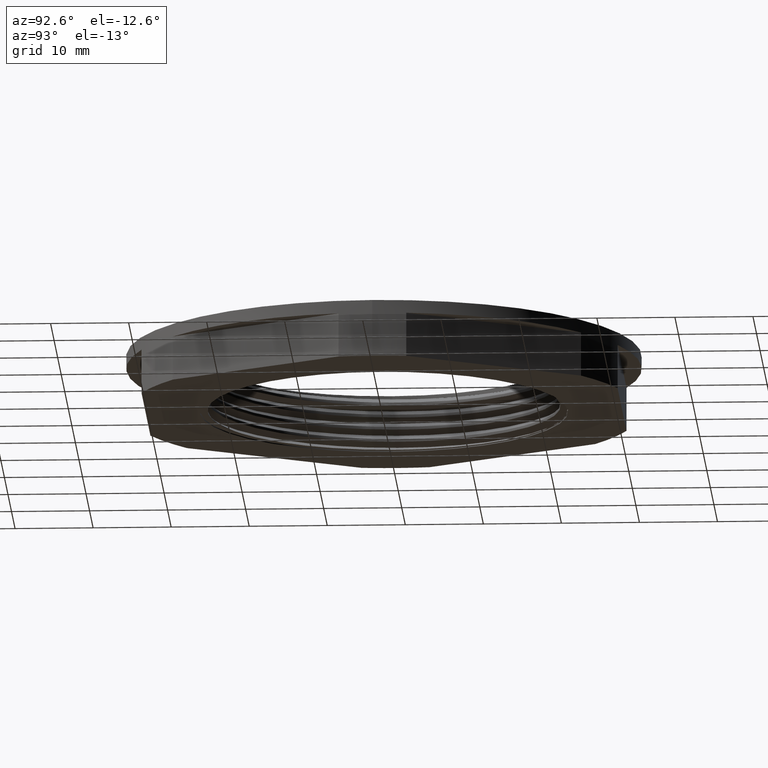
[diagram: clean part render]
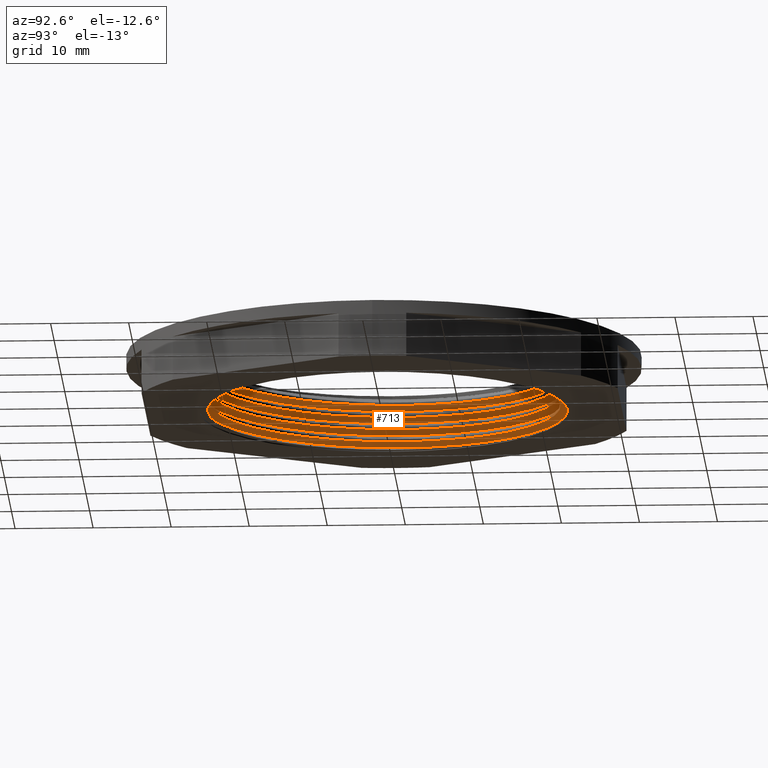
[diagram: same view with one face highlighted and labeled with its STEP entity id]
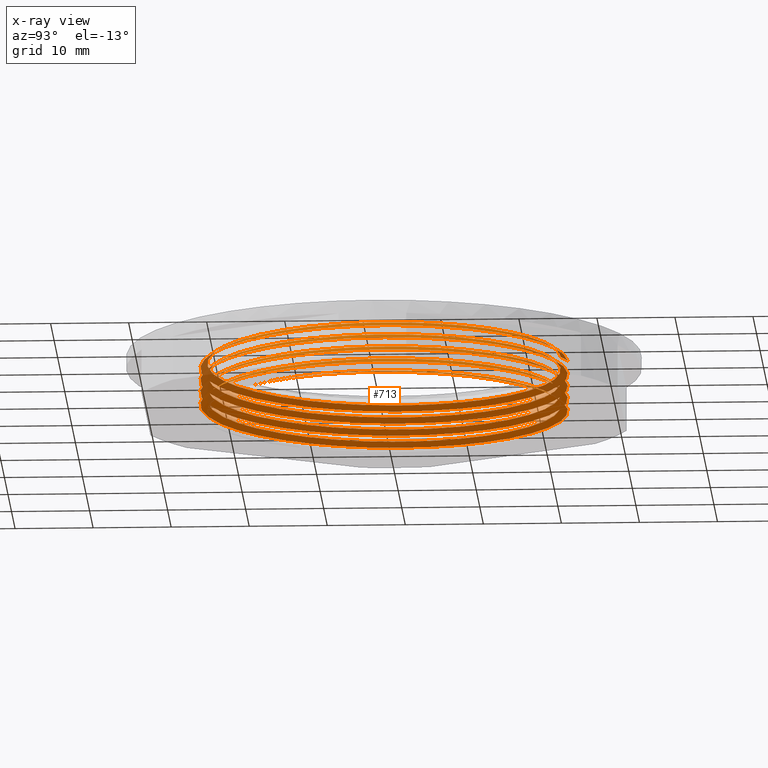
[diagram: x-ray of the same camera — body ghosted, the highlighted face saturated]
A machine part, auxiliary view. The second image highlights one B-rep face of the part: STEP entity #713.
The next image is the same camera in x-ray: the body ghosted, the highlighted face saturated — about 10% of this face is hidden behind the body in this view.
In plain terms, the highlighted face is a freeform B-spline surface patch.
Its self-contained STEP definition (entity closure, byte-faithful):
#32 = EDGE_LOOP ( 'NONE', ( #67, #121, #40, #72, #69, #56, #74, #103, #65, #47, #60, #99, #71 ) ) ;
#40 = ORIENTED_EDGE ( 'NONE', *, *, #597, .T. ) ;
#43 = CARTESIAN_POINT ( 'NONE',  ( 22.61287820974256100, -0.0002837199695431614500, 0.2351515696547017700 ) ) ;
#47 = ORIENTED_EDGE ( 'NONE', *, *, #602, .T. ) ;
#56 = ORIENTED_EDGE ( 'NONE', *, *, #630, .T. ) ;
#60 = ORIENTED_EDGE ( 'NONE', *, *, #647, .T. ) ;
#64 = CARTESIAN_POINT ( 'NONE',  ( -22.61106558176230400, -0.0002837199695431614500, 1.028414727549436900 ) ) ;
#65 = ORIENTED_EDGE ( 'NONE', *, *, #605, .T. ) ;
#67 = ORIENTED_EDGE ( 'NONE', *, *, #676, .T. ) ;
#69 = ORIENTED_EDGE ( 'NONE', *, *, #608, .T. ) ;
#71 = ORIENTED_EDGE ( 'NONE', *, *, #654, .T. ) ;
#72 = ORIENTED_EDGE ( 'NONE', *, *, #669, .T. ) ;
#74 = ORIENTED_EDGE ( 'NONE', *, *, #595, .T. ) ;
#99 = ORIENTED_EDGE ( 'NONE', *, *, #661, .F. ) ;
#103 = ORIENTED_EDGE ( 'NONE', *, *, #696, .T. ) ;
#121 = ORIENTED_EDGE ( 'NONE', *, *, #609, .T. ) ;
#257 = VERTEX_POINT ( 'NONE', #43 ) ;
#258 = VERTEX_POINT ( 'NONE', #64 ) ;
#274 = VERTEX_POINT ( 'NONE', #315 ) ;
#275 = VERTEX_POINT ( 'NONE', #345 ) ;
#279 = VERTEX_POINT ( 'NONE', #320 ) ;
#284 = VERTEX_POINT ( 'NONE', #339 ) ;
#285 = VERTEX_POINT ( 'NONE', #376 ) ;
#291 = VERTEX_POINT ( 'NONE', #366 ) ;
#309 = VERTEX_POINT ( 'NONE', #372 ) ;
#312 = VERTEX_POINT ( 'NONE', #378 ) ;
#313 = VERTEX_POINT ( 'NONE', #391 ) ;
#315 = CARTESIAN_POINT ( 'NONE',  ( -22.61106558176230400, -0.0002837199695431614500, 2.614941043338907100 ) ) ;
#320 = CARTESIAN_POINT ( 'NONE',  ( -22.61106558176230400, -0.0002837199695431614500, 4.201467359128377800 ) ) ;
#328 = VERTEX_POINT ( 'NONE', #385 ) ;
#339 = CARTESIAN_POINT ( 'NONE',  ( 22.61287820974256100, -0.0002837199695623869000, 1.821677885444171300 ) ) ;
#345 = CARTESIAN_POINT ( 'NONE',  ( -22.61106558176230400, -0.0002837199695431614500, 5.787993674917847100 ) ) ;
#349 = VERTEX_POINT ( 'NONE', #394 ) ;
#366 = CARTESIAN_POINT ( 'NONE',  ( -0.5444621070619297700, 22.60511046592371500, 6.983690960531878200 ) ) ;
#372 = CARTESIAN_POINT ( 'NONE',  ( 22.61287820974256100, -0.0002837199695623869000, 4.994730517023112000 ) ) ;
#376 = CARTESIAN_POINT ( 'NONE',  ( 22.61287820974256100, -0.0002837199697939559500, 3.408204201233639100 ) ) ;
#378 = CARTESIAN_POINT ( 'NONE',  ( -0.01848841511524390600, 23.51612362381857600, 0.03024359211078726400 ) ) ;
#385 = CARTESIAN_POINT ( 'NONE',  ( 22.61287820974256100, -0.0002837199695643310400, 6.581256832812581300 ) ) ;
#391 = CARTESIAN_POINT ( 'NONE',  ( -0.01848841511613359300, 23.51612362381872900, 6.376348855268714600 ) ) ;
#394 = CARTESIAN_POINT ( 'NONE',  ( 15.55030069532362400, -16.41727514312782100, 0.03024359211071185300 ) ) ;
#396 = CARTESIAN_POINT ( 'NONE',  ( -22.61106558176227200, -0.2730075975031426300, 4.204382635836314100 ) ) ;
#399 = CARTESIAN_POINT ( 'NONE',  ( -15.59788749747959700, -16.37034494897998000, 4.405585697373879800 ) ) ;
#405 = CARTESIAN_POINT ( 'NONE',  ( -22.60448787190312100, -0.5456521410208169400, 4.207269907900195200 ) ) ;
#407 = CARTESIAN_POINT ( 'NONE',  ( -22.37858887541368700, -9.909112995607717500, 4.306427802637037100 ) ) ;
#409 = CARTESIAN_POINT ( 'NONE',  ( 9.909735589628290600, -22.37977890937337100, 4.703059381584408200 ) ) ;
#410 = CARTESIAN_POINT ( 'NONE',  ( 16.37096754300055700, -15.59907753143927800, 4.802217276321246500 ) ) ;
#414 = CARTESIAN_POINT ( 'NONE',  ( -8.817186119545498400, -22.83157690235223900, 4.504743592110722600 ) ) ;
#415 = CARTESIAN_POINT ( 'NONE',  ( 22.61287820974254400, -9.048541571059665500, 4.898009336615032800 ) ) ;
#416 = CARTESIAN_POINT ( 'NONE',  ( 22.61287820974256100, -0.0002837199695623869000, 4.994730517023112000 ) ) ;
#419 = CARTESIAN_POINT ( 'NONE',  ( 0.5462747350413953400, -22.60567790586280200, 4.603901486847563600 ) ) ;
#421 = CARTESIAN_POINT ( 'NONE',  ( -22.61106558176230400, -0.0002837199695431614500, 4.201467359128377800 ) ) ;
#426 = CARTESIAN_POINT ( 'NONE',  ( 16.37096754300055000, -15.59907753143925600, 1.629164644742318900 ) ) ;
#427 = CARTESIAN_POINT ( 'NONE',  ( -22.61106558176225400, -0.2730075975031432400, 1.031330004257385600 ) ) ;
#429 = CARTESIAN_POINT ( 'NONE',  ( -15.59788749747957600, -16.37034494897997300, 1.232533065794951400 ) ) ;
#430 = CARTESIAN_POINT ( 'NONE',  ( 0.5462747350414053300, -22.60567790586278700, 1.430848855268635100 ) ) ;
#432 = CARTESIAN_POINT ( 'NONE',  ( -8.817186119545482400, -22.83157690235222900, 1.331690960531793300 ) ) ;
#433 = CARTESIAN_POINT ( 'NONE',  ( 9.909735589628295900, -22.37977890937334600, 1.530006750005477300 ) ) ;
#434 = CARTESIAN_POINT ( 'NONE',  ( 22.61287820974256100, -0.0002837199695623869000, 1.821677885444171300 ) ) ;
#435 = CARTESIAN_POINT ( 'NONE',  ( -22.61106558176230400, -0.0002837199695431614500, 1.028414727549436900 ) ) ;
#437 = CARTESIAN_POINT ( 'NONE',  ( -22.60448787190310700, -0.5456521410208270400, 1.034217276321267800 ) ) ;
#439 = CARTESIAN_POINT ( 'NONE',  ( -22.37858887541366200, -9.909112995607721100, 1.133375171058109700 ) ) ;
#443 = CARTESIAN_POINT ( 'NONE',  ( 22.61287820974251200, -9.048541571059670800, 1.724956705036105200 ) ) ;
#452 = CARTESIAN_POINT ( 'NONE',  ( 22.61287820974256100, -0.0002837199695643310400, 6.581256832812581300 ) ) ;
#453 = CARTESIAN_POINT ( 'NONE',  ( 22.61287820974255800, 0.2724401575640206800, 6.584172109520501700 ) ) ;
#455 = CARTESIAN_POINT ( 'NONE',  ( 22.60630049988340700, 0.5450847010816964900, 6.587059381584382800 ) ) ;
#457 = CARTESIAN_POINT ( 'NONE',  ( 22.38040150339398000, 9.908545555668611700, 6.686217276321226400 ) ) ;
#458 = CARTESIAN_POINT ( 'NONE',  ( 15.59970012545988300, 16.36977750904088000, 6.785375171058066500 ) ) ;
#461 = CARTESIAN_POINT ( 'NONE',  ( 8.818998747525801800, 22.83100946241316000, 6.884533065794909300 ) ) ;
#462 = CARTESIAN_POINT ( 'NONE',  ( -22.61106558176230400, -0.0002837199695431614500, 5.787993674917847100 ) ) ;
#465 = CARTESIAN_POINT ( 'NONE',  ( -0.5444621070619297700, 22.60511046592371500, 6.983690960531878200 ) ) ;
#468 = CARTESIAN_POINT ( 'NONE',  ( -8.817186119545505500, -22.83157690235224300, 6.091269907900191100 ) ) ;
#469 = CARTESIAN_POINT ( 'NONE',  ( -22.61106558176227600, -0.2730075975031394100, 5.790908951625782600 ) ) ;
#470 = CARTESIAN_POINT ( 'NONE',  ( -15.59788749747960200, -16.37034494897998000, 5.992112013163346500 ) ) ;
#471 = CARTESIAN_POINT ( 'NONE',  ( 0.5462747350413922300, -22.60567790586280900, 6.190427802637029400 ) ) ;
#472 = CARTESIAN_POINT ( 'NONE',  ( -22.60448787190312800, -0.5456521410208138300, 5.793796223689663600 ) ) ;
#473 = CARTESIAN_POINT ( 'NONE',  ( 16.37096754300055700, -15.59907753143928300, 6.388743592110714100 ) ) ;
#474 = CARTESIAN_POINT ( 'NONE',  ( 9.909735589628288800, -22.37977890937337800, 6.289585697373873100 ) ) ;
#475 = CARTESIAN_POINT ( 'NONE',  ( 22.61287820974254400, -9.048541571059672600, 6.484535652404499500 ) ) ;
#476 = CARTESIAN_POINT ( 'NONE',  ( -22.37858887541369100, -9.909112995607715700, 5.892954118426504600 ) ) ;
#477 = CARTESIAN_POINT ( 'NONE',  ( 22.61287820974256100, -0.0002837199695643310400, 6.581256832812581300 ) ) ;
#479 = CARTESIAN_POINT ( 'NONE',  ( -22.61106558176226100, -0.2730075975031294200, 2.617856320046850500 ) ) ;
#482 = CARTESIAN_POINT ( 'NONE',  ( -15.59788749747958300, -16.37034494897997300, 2.819059381584416700 ) ) ;
#483 = CARTESIAN_POINT ( 'NONE',  ( 15.59970012545986900, 16.36977750904087600, 0.4392699079001956600 ) ) ;
#485 = CARTESIAN_POINT ( 'NONE',  ( 0.5462747350414014500, -22.60567790586279500, 3.017375171058100900 ) ) ;
#486 = CARTESIAN_POINT ( 'NONE',  ( -22.61106558176228600, 9.047974131120565000, 0.9316935471413491100 ) ) ;
#487 = CARTESIAN_POINT ( 'NONE',  ( -0.5444621070611286300, 22.60511046592371500, 0.6375856973738796000 ) ) ;
#489 = CARTESIAN_POINT ( 'NONE',  ( -22.37858887541366900, -9.909112995607719300, 2.719901486847575300 ) ) ;
#490 = CARTESIAN_POINT ( 'NONE',  ( 16.37096754300055000, -15.59907753143926400, 3.215690960531784300 ) ) ;
#492 = CARTESIAN_POINT ( 'NONE',  ( -22.61106558176230400, -0.0002837199695431614500, 2.614941043338907100 ) ) ;
#493 = CARTESIAN_POINT ( 'NONE',  ( 22.61287820974256100, -0.0002837199695431614500, 0.2351515696547017700 ) ) ;
#500 = CARTESIAN_POINT ( 'NONE',  ( -22.60448787190311400, -0.5456521410208230400, 2.620743592110733400 ) ) ;
#501 = CARTESIAN_POINT ( 'NONE',  ( 22.61287820974219200, -9.048541571060010100, 3.311483020825564800 ) ) ;
#502 = CARTESIAN_POINT ( 'NONE',  ( -8.817186119545489500, -22.83157690235223200, 2.918217276321259000 ) ) ;
#504 = CARTESIAN_POINT ( 'NONE',  ( 22.38040150339396200, 9.908545555668615300, 0.3401120131633539300 ) ) ;
#507 = CARTESIAN_POINT ( 'NONE',  ( 22.61287820974254000, 0.2724401575640388900, 0.2380668463626302600 ) ) ;
#508 = CARTESIAN_POINT ( 'NONE',  ( -16.36915491502030300, 15.59851009150018800, 0.8359014868475633800 ) ) ;
#509 = CARTESIAN_POINT ( 'NONE',  ( -22.61106558176230400, -0.0002837199695431614500, 1.028414727549436900 ) ) ;
#512 = CARTESIAN_POINT ( 'NONE',  ( 9.909735589628290600, -22.37977890937335700, 3.116533065794942400 ) ) ;
#514 = CARTESIAN_POINT ( 'NONE',  ( -9.907922961648031500, 22.37921146943428100, 0.7367435921107216000 ) ) ;
#515 = CARTESIAN_POINT ( 'NONE',  ( 22.60630049988339600, 0.5450847010817041500, 0.2409541184265120200 ) ) ;
#516 = CARTESIAN_POINT ( 'NONE',  ( 8.818998747525787600, 22.83100946241315300, 0.5384278026370374900 ) ) ;
#517 = CARTESIAN_POINT ( 'NONE',  ( 22.61287820974256100, -0.0002837199697939559500, 3.408204201233639100 ) ) ;
#566 = CARTESIAN_POINT ( 'NONE',  ( 22.61287820974256100, -0.0002837199697939559500, 3.408204201233639100 ) ) ;
#567 = CARTESIAN_POINT ( 'NONE',  ( 22.38040150339395900, 9.908545555668617100, 3.513164644742297500 ) ) ;
#568 = CARTESIAN_POINT ( 'NONE',  ( -0.5444621070611305200, 22.60511046592371500, 3.810638328952821400 ) ) ;
#570 = CARTESIAN_POINT ( 'NONE',  ( -22.61106558176230400, -0.0002837199695431614500, 4.201467359128377800 ) ) ;
#572 = CARTESIAN_POINT ( 'NONE',  ( 15.59970012545986500, 16.36977750904087300, 3.612322539479138100 ) ) ;
#575 = CARTESIAN_POINT ( 'NONE',  ( 8.818998747525784100, 22.83100946241315300, 3.711480434215980000 ) ) ;
#576 = CARTESIAN_POINT ( 'NONE',  ( -9.907922961648031500, 22.37921146943427800, 3.909796223689663300 ) ) ;
#583 = CARTESIAN_POINT ( 'NONE',  ( 22.60630049988339600, 0.5450847010817059200, 3.414006750005454300 ) ) ;
#588 = CARTESIAN_POINT ( 'NONE',  ( 22.61287820974255400, 0.2724401575636065700, 3.411119477941567400 ) ) ;
#589 = CARTESIAN_POINT ( 'NONE',  ( -22.61106558176228600, 9.047974131120563300, 4.104746178720290600 ) ) ;
#591 = CARTESIAN_POINT ( 'NONE',  ( -16.36915491502030000, 15.59851009150018600, 4.008954118426506100 ) ) ;
#595 = EDGE_CURVE ( 'NONE', #279, #309, #1031, .T. ) ;
#597 = EDGE_CURVE ( 'NONE', #258, #284, #1025, .T. ) ;
#602 = EDGE_CURVE ( 'NONE', #328, #291, #1027, .T. ) ;
#605 = EDGE_CURVE ( 'NONE', #275, #328, #1028, .T. ) ;
#608 = EDGE_CURVE ( 'NONE', #274, #285, #1029, .T. ) ;
#609 = EDGE_CURVE ( 'NONE', #257, #258, #1038, .T. ) ;
#630 = EDGE_CURVE ( 'NONE', #285, #279, #1034, .T. ) ;
#647 = EDGE_CURVE ( 'NONE', #291, #313, #1835, .T. ) ;
#654 = EDGE_CURVE ( 'NONE', #312, #349, #1989, .T. ) ;
#661 = EDGE_CURVE ( 'NONE', #312, #313, #1051, .T. ) ;
#669 = EDGE_CURVE ( 'NONE', #284, #274, #1036, .T. ) ;
#676 = EDGE_CURVE ( 'NONE', #349, #257, #1052, .T. ) ;
#696 = EDGE_CURVE ( 'NONE', #309, #275, #1044, .T. ) ;
#713 = ADVANCED_FACE ( 'NONE', ( #1403 ), #1054, .T. ) ;
#1018 = VECTOR ( 'NONE', #1824, 1000.000000000000100 ) ;
#1025 =( BOUNDED_CURVE ( )  B_SPLINE_CURVE ( 2, ( #435, #427, #437, #439, #429, #432, #430, #433, #426, #443, #434 ),
 .UNSPECIFIED., .F., .T. ) 
 B_SPLINE_CURVE_WITH_KNOTS ( ( 3, 2, 2, 2, 2, 3 ),
 ( -0.5010636989453873800, -0.5005010475036588700, -0.4826059102261615600, -0.4647107729486643100, -0.4468156356711670600, -0.4294831498353983100 ),
 .UNSPECIFIED. ) 
 CURVE ( )  GEOMETRIC_REPRESENTATION_ITEM ( )  RATIONAL_B_SPLINE_CURVE ( ( 0.9953638053244358000, 0.9976066520131460200, 1.000000000000000000, 0.9238795325112867400, 1.000000000000000000, 0.9238795325112867400, 1.000000000000000000, 0.9238795325112867400, 1.000000000000000000, 0.9262728804981407200, 0.9953638053244356900 ) ) 
 REPRESENTATION_ITEM ( '' )  );
#1027 =( BOUNDED_CURVE ( )  B_SPLINE_CURVE ( 2, ( #452, #453, #455, #457, #458, #461, #465 ),
 .UNSPECIFIED., .F., .T. ) 
 B_SPLINE_CURVE_WITH_KNOTS ( ( 3, 2, 2, 3 ),
 ( 0.0000000000000000000, 0.0005619386774586198000, 0.01843440647699862500, 0.03630687427653862800 ),
 .UNSPECIFIED. ) 
 CURVE ( )  GEOMETRIC_REPRESENTATION_ITEM ( )  RATIONAL_B_SPLINE_CURVE ( ( 0.9953638053244360200, 0.9976066520131461300, 1.000000000000000000, 0.9238795325112867400, 1.000000000000000000, 0.9238795325112867400, 1.000000000000000000 ) ) 
 REPRESENTATION_ITEM ( '' )  );
#1028 =( BOUNDED_CURVE ( )  B_SPLINE_CURVE ( 2, ( #462, #469, #472, #476, #470, #468, #471, #474, #473, #475, #477 ),
 .UNSPECIFIED., .F., .F. ) 
 B_SPLINE_CURVE_WITH_KNOTS ( ( 3, 2, 2, 2, 2, 3 ),
 ( -0.07158050773155359700, -0.07101785661507598000, -0.05312272968218756400, -0.03522760274929914000, -0.01733247581641072400, 0.0000000000000000000 ),
 .UNSPECIFIED. ) 
 CURVE ( )  GEOMETRIC_REPRESENTATION_ITEM ( )  RATIONAL_B_SPLINE_CURVE ( ( 0.9953638053244360200, 0.9976066520131461300, 1.000000000000000000, 0.9238795325112867400, 1.000000000000000000, 0.9238795325112867400, 1.000000000000000000, 0.9238795325112867400, 1.000000000000000000, 0.9262728804981406000, 0.9953638053244360200 ) ) 
 REPRESENTATION_ITEM ( '' )  );
#1029 =( BOUNDED_CURVE ( )  B_SPLINE_CURVE ( 2, ( #492, #479, #500, #489, #482, #502, #485, #512, #490, #501, #517 ),
 .UNSPECIFIED., .F., .T. ) 
 B_SPLINE_CURVE_WITH_KNOTS ( ( 3, 2, 2, 2, 2, 3 ),
 ( -0.3579026076218168000, -0.3573399562885052300, -0.3394448224592114800, -0.3215496886299176700, -0.3036545548006238700, -0.2863220723046424600 ),
 .UNSPECIFIED. ) 
 CURVE ( )  GEOMETRIC_REPRESENTATION_ITEM ( )  RATIONAL_B_SPLINE_CURVE ( ( 0.9953638053244356900, 0.9976066520131460200, 1.000000000000000000, 0.9238795325112867400, 1.000000000000000000, 0.9238795325112867400, 1.000000000000000000, 0.9238795325112867400, 1.000000000000000000, 0.9262728804981442700, 0.9953638053244290300 ) ) 
 REPRESENTATION_ITEM ( '' )  );
#1031 =( BOUNDED_CURVE ( )  B_SPLINE_CURVE ( 2, ( #421, #396, #405, #407, #399, #414, #419, #409, #410, #415, #416 ),
 .UNSPECIFIED., .F., .F. ) 
 B_SPLINE_CURVE_WITH_KNOTS ( ( 3, 2, 2, 2, 2, 3 ),
 ( -0.2147415438838738400, -0.2141788926589793000, -0.1962837622778886800, -0.1783886318967981300, -0.1604935015157075200, -0.1431610223595114500 ),
 .UNSPECIFIED. ) 
 CURVE ( )  GEOMETRIC_REPRESENTATION_ITEM ( )  RATIONAL_B_SPLINE_CURVE ( ( 0.9953638053244360200, 0.9976066520131461300, 1.000000000000000000, 0.9238795325112867400, 1.000000000000000000, 0.9238795325112867400, 1.000000000000000000, 0.9238795325112867400, 1.000000000000000000, 0.9262728804981406000, 0.9953638053244360200 ) ) 
 REPRESENTATION_ITEM ( '' )  );
#1034 =( BOUNDED_CURVE ( )  B_SPLINE_CURVE ( 2, ( #566, #588, #583, #567, #572, #575, #568, #576, #591, #589, #570 ),
 .UNSPECIFIED., .F., .T. ) 
 B_SPLINE_CURVE_WITH_KNOTS ( ( 3, 2, 2, 2, 2, 3 ),
 ( -0.2863220723046424600, -0.2857594210255385800, -0.2678642889203466900, -0.2499691568151547200, -0.2320740247099627700, -0.2147415438838738400 ),
 .UNSPECIFIED. ) 
 CURVE ( )  GEOMETRIC_REPRESENTATION_ITEM ( )  RATIONAL_B_SPLINE_CURVE ( ( 0.9953638053244290300, 0.9976066520131424700, 1.000000000000000000, 0.9238795325112867400, 1.000000000000000000, 0.9238795325112867400, 1.000000000000000000, 0.9238795325112867400, 1.000000000000000000, 0.9262728804981406000, 0.9953638053244360200 ) ) 
 REPRESENTATION_ITEM ( '' )  );
#1036 =( BOUNDED_CURVE ( )  B_SPLINE_CURVE ( 2, ( #1109, #1142, #1133, #1131, #1126, #1124, #1130, #1125, #1134, #1129, #1128 ),
 .UNSPECIFIED., .F., .T. ) 
 B_SPLINE_CURVE_WITH_KNOTS ( ( 3, 2, 2, 2, 2, 3 ),
 ( -0.4294831498353983100, -0.4289204984478783300, -0.4110253628944829400, -0.3931302273410875500, -0.3752350917876922100, -0.3579026076218168000 ),
 .UNSPECIFIED. ) 
 CURVE ( )  GEOMETRIC_REPRESENTATION_ITEM ( )  RATIONAL_B_SPLINE_CURVE ( ( 0.9953638053244360200, 0.9976066520131461300, 1.000000000000000000, 0.9238795325112867400, 1.000000000000000000, 0.9238795325112867400, 1.000000000000000000, 0.9238795325112867400, 1.000000000000000000, 0.9262728804981406000, 0.9953638053244360200 ) ) 
 REPRESENTATION_ITEM ( '' )  );
#1038 =( BOUNDED_CURVE ( )  B_SPLINE_CURVE ( 2, ( #493, #507, #515, #504, #483, #516, #487, #514, #508, #486, #509 ),
 .UNSPECIFIED., .F., .T. ) 
 B_SPLINE_CURVE_WITH_KNOTS ( ( 3, 2, 2, 2, 2, 3 ),
 ( -0.5726442549517830600, -0.5720816034558461300, -0.5541864644542471300, -0.5362913254526482400, -0.5183961864510493500, -0.5010636989453873800 ),
 .UNSPECIFIED. ) 
 CURVE ( )  GEOMETRIC_REPRESENTATION_ITEM ( )  RATIONAL_B_SPLINE_CURVE ( ( 0.9953638053244361400, 0.9976066520131462400, 1.000000000000000000, 0.9238795325112867400, 1.000000000000000000, 0.9238795325112867400, 1.000000000000000000, 0.9238795325112867400, 1.000000000000000000, 0.9262728804981406000, 0.9953638053244360200 ) ) 
 REPRESENTATION_ITEM ( '' )  );
#1044 =( BOUNDED_CURVE ( )  B_SPLINE_CURVE ( 2, ( #1313, #1314, #1300, #1316, #1318, #1291, #1292, #1321, #1319, #1296, #1297 ),
 .UNSPECIFIED., .F., .T. ) 
 B_SPLINE_CURVE_WITH_KNOTS ( ( 3, 2, 2, 2, 2, 3 ),
 ( -0.1431610223595114500, -0.1425983711888253700, -0.1247032425318358700, -0.1068081138748464000, -0.08891298521785701000, -0.07158050773155359700 ),
 .UNSPECIFIED. ) 
 CURVE ( )  GEOMETRIC_REPRESENTATION_ITEM ( )  RATIONAL_B_SPLINE_CURVE ( ( 0.9953638053244360200, 0.9976066520131461300, 1.000000000000000000, 0.9238795325112867400, 1.000000000000000000, 0.9238795325112867400, 1.000000000000000000, 0.9238795325112867400, 1.000000000000000000, 0.9262728804981406000, 0.9953638053244360200 ) ) 
 REPRESENTATION_ITEM ( '' )  );
#1051 =( BOUNDED_CURVE ( )  B_SPLINE_CURVE ( 2, ( #1966, #1970, #1949, #1941, #1944, #1976, #1977, #1953, #1942, #1956, #1943, #1981, #1980, #1983, #1982, #1979, #1062, #1068, #1064, #1071, #1059, #1069, #1075, #1063, #1058, #1079, #1060, #1072, #1061, #1065, #1066, #1070, #1067, #1073, #1074, #1076, #1080, #1077, #1078, #1081, #1082, #1056, #1057, #1103, #1083, #1084, #1091, #1085, #1092, #1093, #1094, #1104, #1095, #1106, #1096, #1097, #1086, #1098, #1099, #1100, #1087, #1101, #1102, #1088, #1105 ),
 .UNSPECIFIED., .F., .T. ) 
 B_SPLINE_CURVE_WITH_KNOTS ( ( 3, 2, 2, 2, 2, 2, 2, 2, 2, 2, 2, 2, 2, 2, 2, 2, 2, 2, 2, 2, 2, 2, 2, 2, 2, 2, 2, 2, 2, 2, 2, 2, 3 ),
 ( 0.0000000000000000000, 0.02500000000000001500, 0.05000000000000003100, 0.07500000000000003900, 0.1000000000000000600, 0.1250000000000000600, 0.1500000000000000800, 0.1750000000000000700, 0.2000000000000001200, 0.2250000000000001200, 0.2500000000000001100, 0.2750000000000001300, 0.3000000000000001600, 0.3250000000000001800, 0.3500000000000001400, 0.3750000000000001700, 0.4000000000000002400, 0.4250000000000002100, 0.4500000000000002300, 0.4750000000000002600, 0.5000000000000002200, 0.5250000000000002400, 0.5500000000000002700, 0.5750000000000002900, 0.6000000000000003100, 0.6250000000000003300, 0.6500000000000003600, 0.6750000000000003800, 0.7000000000000002900, 0.7250000000000003100, 0.7500000000000003300, 0.7750000000000004700, 0.8000000000000004900 ),
 .UNSPECIFIED. ) 
 CURVE ( )  GEOMETRIC_REPRESENTATION_ITEM ( )  RATIONAL_B_SPLINE_CURVE ( ( 1.000000000000000000, 0.9238795325112867400, 1.000000000000000000, 0.9238795325112867400, 1.000000000000000000, 0.9238795325112867400, 1.000000000000000000, 0.9238795325112867400, 1.000000000000000000, 0.9238795325112867400, 1.000000000000000000, 0.9238795325112867400, 1.000000000000000000, 0.9238795325112867400, 1.000000000000000000, 0.9238795325112867400, 1.000000000000000000, 0.9238795325112867400, 1.000000000000000000, 0.9238795325112867400, 1.000000000000000000, 0.9238795325112867400, 1.000000000000000000, 0.9238795325112867400, 1.000000000000000000, 0.9238795325112867400, 1.000000000000000000, 0.9238795325112867400, 1.000000000000000000, 0.9238795325112867400, 1.000000000000000000, 0.9238795325112867400, 1.000000000000000000, 0.9238795325112867400, 1.000000000000000000, 0.9238795325112867400, 1.000000000000000000, 0.9238795325112867400, 1.000000000000000000, 0.9238795325112867400, 1.000000000000000000, 0.9238795325112867400, 1.000000000000000000, 0.9238795325112867400, 1.000000000000000000, 0.9238795325112867400, 1.000000000000000000, 0.9238795325112867400, 1.000000000000000000, 0.9238795325112867400, 1.000000000000000000, 0.9238795325112867400, 1.000000000000000000, 0.9238795325112867400, 1.000000000000000000, 0.9238795325112867400, 1.000000000000000000, 0.9238795325112867400, 1.000000000000000000, 0.9238795325112867400, 1.000000000000000000, 0.9238795325112867400, 1.000000000000000000, 0.9238795325112854100, 1.000000000000001300 ) ) 
 REPRESENTATION_ITEM ( '' )  );
#1052 =( BOUNDED_CURVE ( )  B_SPLINE_CURVE ( 2, ( #1157, #1168, #1171, #1158, #1159 ),
 .UNSPECIFIED., .F., .T. ) 
 B_SPLINE_CURVE_WITH_KNOTS ( ( 3, 2, 3 ),
 ( -0.5911537227133331100, -0.5899621421231685500, -0.5726442549517830600 ),
 .UNSPECIFIED. ) 
 CURVE ( )  GEOMETRIC_REPRESENTATION_ITEM ( )  RATIONAL_B_SPLINE_CURVE ( ( 0.9905303575769992500, 0.9949271060783719800, 1.000000000000000000, 0.9262728804981406000, 0.9953638053244360200 ) ) 
 REPRESENTATION_ITEM ( '' )  );
#1054 =( BOUNDED_SURFACE ( )  B_SPLINE_SURFACE ( 1, 2, ( 
 ( #1426, #1446, #1429, #1450, #1423, #1424, #1398, #1413, #1428, #1437, #1400, #1430, #1448, #1404, #1449, #1425, #1439, #1410, #1440, #1427, #1451, #1417, #1406, #1431, #1420, #1396, #1452, #1441, #1399, #1444, #1433, #1443, #1435, #1445, #1411, #1436, #1442, #1453, #1409, #1397, #1407, #1454, #1401, #1415, #1402, #1412, #1506, #1471, #1460, #1485, #1474, #1507, #1475, #1494, #1483, #1498, #1468, #1473, #1512, #1466, #1491, #1495, #1504, #1496, #1505, #1511, #1484, #1479, #1462, #1516, #1476, #1459, #1478, #1467, #1465, #1481, #1492, #1477, #1488, #1463, #1499 ),
 ( #1472, #1493, #1480, #1482, #1508, #1497, #1509, #1514, #1500, #1469, #1513, #1470, #1486, #1487, #1461, #1489, #1464, #1490, #1501, #1510, #1502, #1503, #1515, #1517, #1518, #1455, #1456, #1457, #1458, #1571, #1557, #1521, #1538, #1563, #1553, #1561, #1544, #1565, #1554, #1519, #1552, #1522, #1523, #1540, #1574, #1575, #1555, #1572, #1524, #1549, #1558, #1545, #1537, #1541, #1542, #1528, #1568, #1573, #1539, #1526, #1576, #1525, #1564, #1532, #1527, #1529, #1569, #1543, #1533, #1547, #1546, #1577, #1556, #1551, #1530, #1550, #1531, #1570, #1534, #1548, #1579 ) ),
 .UNSPECIFIED., .F., .F., .F. ) 
 B_SPLINE_SURFACE_WITH_KNOTS ( ( 2, 2 ),
 ( 3, 2, 2, 2, 2, 2, 2, 2, 2, 2, 2, 2, 2, 2, 2, 2, 2, 2, 2, 2, 2, 2, 2, 2, 2, 2, 2, 2, 2, 2, 2, 2, 2, 2, 2, 2, 2, 2, 2, 2, 3 ),
 ( 0.0000000000000000000, 1.000000000000000000 ),
 ( 0.0000000000000000000, 0.02500000000000000100, 0.05000000000000000300, 0.07499999999999999700, 0.1000000000000000100, 0.1250000000000000000, 0.1499999999999999900, 0.1749999999999999900, 0.2000000000000000100, 0.2250000000000000100, 0.2500000000000000000, 0.2750000000000000200, 0.2999999999999999900, 0.3250000000000000100, 0.3499999999999999800, 0.3750000000000000000, 0.4000000000000000200, 0.4249999999999999900, 0.4500000000000000100, 0.4749999999999999800, 0.5000000000000000000, 0.5250000000000000200, 0.5500000000000000400, 0.5749999999999999600, 0.5999999999999999800, 0.6250000000000000000, 0.6500000000000000200, 0.6750000000000000400, 0.6999999999999999600, 0.7249999999999999800, 0.7500000000000000000, 0.7750000000000000200, 0.8000000000000000400, 0.8249999999999999600, 0.8499999999999999800, 0.8750000000000000000, 0.9000000000000000200, 0.9250000000000000400, 0.9499999999999999600, 0.9749999999999999800, 1.000000000000000000 ),
 .UNSPECIFIED. ) 
 GEOMETRIC_REPRESENTATION_ITEM ( )  RATIONAL_B_SPLINE_SURFACE ( (
 ( 1.000000000000000000, 0.9238795325112867400, 1.000000000000000000, 0.9238795325112867400, 1.000000000000000000, 0.9238795325112867400, 1.000000000000000000, 0.9238795325112867400, 1.000000000000000000, 0.9238795325112867400, 1.000000000000000000, 0.9238795325112867400, 1.000000000000000000, 0.9238795325112867400, 1.000000000000000000, 0.9238795325112867400, 1.000000000000000000, 0.9238795325112867400, 1.000000000000000000, 0.9238795325112867400, 1.000000000000000000, 0.9238795325112867400, 1.000000000000000000, 0.9238795325112867400, 1.000000000000000000, 0.9238795325112867400, 1.000000000000000000, 0.9238795325112867400, 1.000000000000000000, 0.9238795325112867400, 1.000000000000000000, 0.9238795325112867400, 1.000000000000000000, 0.9238795325112867400, 1.000000000000000000, 0.9238795325112867400, 1.000000000000000000, 0.9238795325112867400, 1.000000000000000000, 0.9238795325112867400, 1.000000000000000000, 0.9238795325112867400, 1.000000000000000000, 0.9238795325112867400, 1.000000000000000000, 0.9238795325112867400, 1.000000000000000000, 0.9238795325112867400, 1.000000000000000000, 0.9238795325112867400, 1.000000000000000000, 0.9238795325112867400, 1.000000000000000000, 0.9238795325112867400, 1.000000000000000000, 0.9238795325112867400, 1.000000000000000000, 0.9238795325112867400, 1.000000000000000000, 0.9238795325112867400, 1.000000000000000000, 0.9238795325112867400, 1.000000000000000000, 0.9238795325112867400, 1.000000000000000000, 0.9238795325112867400, 1.000000000000000000, 0.9238795325112867400, 1.000000000000000000, 0.9238795325112867400, 1.000000000000000000, 0.9238795325112867400, 1.000000000000000000, 0.9238795325112867400, 1.000000000000000000, 0.9238795325112867400, 1.000000000000000000, 0.9238795325112867400, 1.000000000000000000, 0.9238795325112867400, 1.000000000000000000),
 ( 1.000000000000000000, 0.9238795325112867400, 1.000000000000000000, 0.9238795325112867400, 1.000000000000000000, 0.9238795325112867400, 1.000000000000000000, 0.9238795325112867400, 1.000000000000000000, 0.9238795325112867400, 1.000000000000000000, 0.9238795325112867400, 1.000000000000000000, 0.9238795325112867400, 1.000000000000000000, 0.9238795325112867400, 1.000000000000000000, 0.9238795325112867400, 1.000000000000000000, 0.9238795325112867400, 1.000000000000000000, 0.9238795325112867400, 1.000000000000000000, 0.9238795325112867400, 1.000000000000000000, 0.9238795325112867400, 1.000000000000000000, 0.9238795325112867400, 1.000000000000000000, 0.9238795325112867400, 1.000000000000000000, 0.9238795325112867400, 1.000000000000000000, 0.9238795325112867400, 1.000000000000000000, 0.9238795325112867400, 1.000000000000000000, 0.9238795325112867400, 1.000000000000000000, 0.9238795325112867400, 1.000000000000000000, 0.9238795325112867400, 1.000000000000000000, 0.9238795325112867400, 1.000000000000000000, 0.9238795325112867400, 1.000000000000000000, 0.9238795325112867400, 1.000000000000000000, 0.9238795325112867400, 1.000000000000000000, 0.9238795325112867400, 1.000000000000000000, 0.9238795325112867400, 1.000000000000000000, 0.9238795325112867400, 1.000000000000000000, 0.9238795325112867400, 1.000000000000000000, 0.9238795325112867400, 1.000000000000000000, 0.9238795325112867400, 1.000000000000000000, 0.9238795325112867400, 1.000000000000000000, 0.9238795325112867400, 1.000000000000000000, 0.9238795325112867400, 1.000000000000000000, 0.9238795325112867400, 1.000000000000000000, 0.9238795325112867400, 1.000000000000000000, 0.9238795325112867400, 1.000000000000000000, 0.9238795325112867400, 1.000000000000000000, 0.9238795325112867400, 1.000000000000000000, 0.9238795325112867400, 1.000000000000000000) ) ) 
 REPRESENTATION_ITEM ( '' )  SURFACE ( )  );
#1056 = CARTESIAN_POINT ( 'NONE',  ( 9.761115903182778600, -23.50865750392381400, 4.095717276321378700 ) ) ;
#1057 = CARTESIAN_POINT ( 'NONE',  ( 16.64323156039755600, -16.61518067743769600, 4.194875171058220600 ) ) ;
#1058 = CARTESIAN_POINT ( 'NONE',  ( 0.02030104309544282500, -23.51669106375778300, 2.410033065795066600 ) ) ;
#1059 = CARTESIAN_POINT ( 'NONE',  ( -23.51550102979810200, -0.01967844907486464300, 2.013401486847699500 ) ) ;
#1060 = CARTESIAN_POINT ( 'NONE',  ( 16.64323156039755600, -16.61518067743769600, 2.608348855268750400 ) ) ;
#1061 = CARTESIAN_POINT ( 'NONE',  ( 23.51731365777835900, 0.01911100913575945700, 2.806664644742434200 ) ) ;
#1062 = CARTESIAN_POINT ( 'NONE',  ( -0.01848841511518415200, 23.51612362381868200, 1.616769907900331500 ) ) ;
#1063 = CARTESIAN_POINT ( 'NONE',  ( -9.720513816991896800, -23.52472462359176200, 2.310875171058225200 ) ) ;
#1064 = CARTESIAN_POINT ( 'NONE',  ( -16.64141893241729900, 16.61461323749859200, 1.815085697374015500 ) ) ;
#1065 = CARTESIAN_POINT ( 'NONE',  ( 23.50928009794438400, 9.759925869223105000, 2.905822539479276000 ) ) ;
#1066 = CARTESIAN_POINT ( 'NONE',  ( 16.61580327145827600, 16.64204152643787200, 3.004980434216117900 ) ) ;
#1067 = CARTESIAN_POINT ( 'NONE',  ( -0.01848841511518415200, 23.51612362381868200, 3.203296223689801700 ) ) ;
#1068 = CARTESIAN_POINT ( 'NONE',  ( -9.759303275202519500, 23.50809006398471000, 1.715927802637173600 ) ) ;
#1069 = CARTESIAN_POINT ( 'NONE',  ( -23.50746746996412600, -9.760493309162200100, 2.112559381584540000 ) ) ;
#1070 = CARTESIAN_POINT ( 'NONE',  ( 9.722326444972168200, 23.52415718365264800, 3.104138328952960300 ) ) ;
#1071 = CARTESIAN_POINT ( 'NONE',  ( -23.52353458963208200, 9.721136411012473400, 1.914243592110857200 ) ) ;
#1072 = CARTESIAN_POINT ( 'NONE',  ( 23.52534721761232800, -9.721703850951584500, 2.707506750005593200 ) ) ;
#1073 = CARTESIAN_POINT ( 'NONE',  ( -9.759303275202519500, 23.50809006398471000, 3.302454118426643200 ) ) ;
#1074 = CARTESIAN_POINT ( 'NONE',  ( -16.64141893241729900, 16.61461323749859200, 3.401612013163485500 ) ) ;
#1075 = CARTESIAN_POINT ( 'NONE',  ( -16.61399064347801200, -16.64260896637697900, 2.211717276321382800 ) ) ;
#1076 = CARTESIAN_POINT ( 'NONE',  ( -23.52353458963208200, 9.721136411012473400, 3.500769907900328300 ) ) ;
#1077 = CARTESIAN_POINT ( 'NONE',  ( -23.50746746996412600, -9.760493309162200100, 3.699085697374010300 ) ) ;
#1078 = CARTESIAN_POINT ( 'NONE',  ( -16.61399064347801200, -16.64260896637697900, 3.798243592110852600 ) ) ;
#1079 = CARTESIAN_POINT ( 'NONE',  ( 9.761115903182778600, -23.50865750392381400, 2.509190960531908500 ) ) ;
#1080 = CARTESIAN_POINT ( 'NONE',  ( -23.51550102979810200, -0.01967844907486464300, 3.599927802637169300 ) ) ;
#1081 = CARTESIAN_POINT ( 'NONE',  ( -9.720513816991896800, -23.52472462359176200, 3.897401486847694500 ) ) ;
#1082 = CARTESIAN_POINT ( 'NONE',  ( 0.02030104309544282500, -23.51669106375778300, 3.996559381584536800 ) ) ;
#1083 = CARTESIAN_POINT ( 'NONE',  ( 23.51731365777835900, 0.01911100913575945700, 4.393190960531904400 ) ) ;
#1084 = CARTESIAN_POINT ( 'NONE',  ( 23.50928009794438400, 9.759925869223105000, 4.492348855268745400 ) ) ;
#1085 = CARTESIAN_POINT ( 'NONE',  ( 9.722326444972168200, 23.52415718365264800, 4.690664644742430100 ) ) ;
#1086 = CARTESIAN_POINT ( 'NONE',  ( 0.02030104309544282500, -23.51669106375778300, 5.583085697374007100 ) ) ;
#1087 = CARTESIAN_POINT ( 'NONE',  ( 23.51731365777835900, 0.01911100913575945700, 5.979717276321373700 ) ) ;
#1088 = CARTESIAN_POINT ( 'NONE',  ( 9.722326444972036800, 23.52415718365278300, 6.277190960531902100 ) ) ;
#1091 = CARTESIAN_POINT ( 'NONE',  ( 16.61580327145827600, 16.64204152643787200, 4.591506750005588200 ) ) ;
#1092 = CARTESIAN_POINT ( 'NONE',  ( -0.01848841511518415200, 23.51612362381868200, 4.789822539479271900 ) ) ;
#1093 = CARTESIAN_POINT ( 'NONE',  ( -9.759303275202519500, 23.50809006398471000, 4.888980434216114700 ) ) ;
#1094 = CARTESIAN_POINT ( 'NONE',  ( -16.64141893241729900, 16.61461323749859200, 4.988138328952955700 ) ) ;
#1095 = CARTESIAN_POINT ( 'NONE',  ( -23.51550102979810200, -0.01967844907486464300, 5.186454118426639500 ) ) ;
#1096 = CARTESIAN_POINT ( 'NONE',  ( -16.61399064347801200, -16.64260896637697900, 5.384769907900322400 ) ) ;
#1097 = CARTESIAN_POINT ( 'NONE',  ( -9.720513816991896800, -23.52472462359176200, 5.483927802637166100 ) ) ;
#1098 = CARTESIAN_POINT ( 'NONE',  ( 9.761115903182778600, -23.50865750392381400, 5.682243592110849000 ) ) ;
#1099 = CARTESIAN_POINT ( 'NONE',  ( 16.64323156039755600, -16.61518067743769600, 5.781401486847690000 ) ) ;
#1100 = CARTESIAN_POINT ( 'NONE',  ( 23.52534721761232800, -9.721703850951584500, 5.880559381584531800 ) ) ;
#1101 = CARTESIAN_POINT ( 'NONE',  ( 23.50928009794438400, 9.759925869223105000, 6.078875171058218300 ) ) ;
#1102 = CARTESIAN_POINT ( 'NONE',  ( 16.61580327145827600, 16.64204152643787200, 6.178033065795058400 ) ) ;
#1103 = CARTESIAN_POINT ( 'NONE',  ( 23.52534721761232800, -9.721703850951584500, 4.294033065795062500 ) ) ;
#1104 = CARTESIAN_POINT ( 'NONE',  ( -23.52353458963208200, 9.721136411012473400, 5.087296223689797600 ) ) ;
#1105 = CARTESIAN_POINT ( 'NONE',  ( -0.01848841511613359300, 23.51612362381872900, 6.376348855268714600 ) ) ;
#1106 = CARTESIAN_POINT ( 'NONE',  ( -23.50746746996412600, -9.760493309162200100, 5.285612013163481400 ) ) ;
#1109 = CARTESIAN_POINT ( 'NONE',  ( 22.61287820974256100, -0.0002837199695623869000, 1.821677885444171300 ) ) ;
#1124 = CARTESIAN_POINT ( 'NONE',  ( 8.818998747525798300, 22.83100946241315700, 2.124954118426500800 ) ) ;
#1125 = CARTESIAN_POINT ( 'NONE',  ( -9.907922961648029800, 22.37921146943429200, 2.323269907900185100 ) ) ;
#1126 = CARTESIAN_POINT ( 'NONE',  ( 15.59970012545987900, 16.36977750904087600, 2.025796223689658900 ) ) ;
#1128 = CARTESIAN_POINT ( 'NONE',  ( -22.61106558176230400, -0.0002837199695431614500, 2.614941043338907100 ) ) ;
#1129 = CARTESIAN_POINT ( 'NONE',  ( -22.61106558176229000, 9.047974131120575700, 2.518219862930813200 ) ) ;
#1130 = CARTESIAN_POINT ( 'NONE',  ( -0.5444621070611230800, 22.60511046592372600, 2.224112013163343600 ) ) ;
#1131 = CARTESIAN_POINT ( 'NONE',  ( 22.38040150339397300, 9.908545555668611700, 1.926638328952817900 ) ) ;
#1133 = CARTESIAN_POINT ( 'NONE',  ( 22.60630049988340300, 0.5450847010816986000, 1.827480434215975400 ) ) ;
#1134 = CARTESIAN_POINT ( 'NONE',  ( -16.36915491502030300, 15.59851009150019900, 2.422427802637026500 ) ) ;
#1142 = CARTESIAN_POINT ( 'NONE',  ( 22.61287820974255800, 0.2724401575640237300, 1.824593162152093700 ) ) ;
#1157 = CARTESIAN_POINT ( 'NONE',  ( 15.55030069532362400, -16.41727514312782100, 0.03024359211071185300 ) ) ;
#1158 = CARTESIAN_POINT ( 'NONE',  ( 22.61287820974254700, -9.048541571059676200, 0.1384303892466175700 ) ) ;
#1159 = CARTESIAN_POINT ( 'NONE',  ( 22.61287820974256100, -0.0002837199695431614500, 0.2351515696547017700 ) ) ;
#1168 = CARTESIAN_POINT ( 'NONE',  ( 15.97112062839245500, -16.01869449371701000, 0.03650204123623504400 ) ) ;
#1171 = CARTESIAN_POINT ( 'NONE',  ( 16.37096754300055700, -15.59907753143928700, 0.04263832895283184400 ) ) ;
#1291 = CARTESIAN_POINT ( 'NONE',  ( 8.818998747525800000, 22.83100946241316000, 5.298006750005442600 ) ) ;
#1292 = CARTESIAN_POINT ( 'NONE',  ( -0.5444621070611217500, 22.60511046592373000, 5.397164644742281900 ) ) ;
#1296 = CARTESIAN_POINT ( 'NONE',  ( -22.61106558176230100, 9.047974131120575700, 5.691272494509750100 ) ) ;
#1297 = CARTESIAN_POINT ( 'NONE',  ( -22.61106558176230400, -0.0002837199695431614500, 5.787993674917847100 ) ) ;
#1300 = CARTESIAN_POINT ( 'NONE',  ( 22.60630049988340700, 0.5450847010816971500, 5.000533065794915200 ) ) ;
#1313 = CARTESIAN_POINT ( 'NONE',  ( 22.61287820974256100, -0.0002837199695623869000, 4.994730517023112000 ) ) ;
#1314 = CARTESIAN_POINT ( 'NONE',  ( 22.61287820974256100, 0.2724401575640222300, 4.997645793731033200 ) ) ;
#1316 = CARTESIAN_POINT ( 'NONE',  ( 22.38040150339398000, 9.908545555668611700, 5.099690960531757100 ) ) ;
#1318 = CARTESIAN_POINT ( 'NONE',  ( 15.59970012545988300, 16.36977750904088000, 5.198848855268598100 ) ) ;
#1319 = CARTESIAN_POINT ( 'NONE',  ( -16.36915491502030700, 15.59851009150020200, 5.595480434215965600 ) ) ;
#1321 = CARTESIAN_POINT ( 'NONE',  ( -9.907922961648029800, 22.37921146943429900, 5.496322539479122900 ) ) ;
#1396 = CARTESIAN_POINT ( 'NONE',  ( 9.761115903182778600, -23.50865750392379300, 0.9226646447421594800 ) ) ;
#1397 = CARTESIAN_POINT ( 'NONE',  ( -9.720513816991882500, -23.52472462359175200, 2.310875171057945800 ) ) ;
#1398 = CARTESIAN_POINT ( 'NONE',  ( -16.61399064347799700, -16.64260896637697200, -0.9613353552578364200 ) ) ;
#1399 = CARTESIAN_POINT ( 'NONE',  ( 23.51731365777834900, 0.01911100913576542500, 1.220138328952684400 ) ) ;
#1400 = CARTESIAN_POINT ( 'NONE',  ( 16.64323156039754900, -16.61518067743768200, -0.5647037763104688600 ) ) ;
#1401 = CARTESIAN_POINT ( 'NONE',  ( 16.64323156039754900, -16.61518067743768200, 2.608348855268470600 ) ) ;
#1402 = CARTESIAN_POINT ( 'NONE',  ( 23.51731365777834900, 0.01911100913576542500, 2.806664644742154400 ) ) ;
#1403 = FACE_OUTER_BOUND ( 'NONE', #32, .T. ) ;
#1404 = CARTESIAN_POINT ( 'NONE',  ( 23.50928009794436200, 9.759925869223108600, -0.2672300920999436900 ) ) ;
#1406 = CARTESIAN_POINT ( 'NONE',  ( -16.61399064347799700, -16.64260896637697200, 0.6251909605316333700 ) ) ;
#1407 = CARTESIAN_POINT ( 'NONE',  ( 0.02030104309544879200, -23.51669106375776900, 2.410033065794787700 ) ) ;
#1409 = CARTESIAN_POINT ( 'NONE',  ( -16.61399064347799700, -16.64260896637697200, 2.211717276321103900 ) ) ;
#1410 = CARTESIAN_POINT ( 'NONE',  ( -9.759303275202519500, 23.50809006398468900, 0.1294014868474235600 ) ) ;
#1411 = CARTESIAN_POINT ( 'NONE',  ( -16.64141893241729200, 16.61461323749857800, 1.815085697373735700 ) ) ;
#1412 = CARTESIAN_POINT ( 'NONE',  ( 23.50928009794436200, 9.759925869223108600, 2.905822539478997200 ) ) ;
#1413 = CARTESIAN_POINT ( 'NONE',  ( -9.720513816991882500, -23.52472462359175200, -0.8621774605209944200 ) ) ;
#1415 = CARTESIAN_POINT ( 'NONE',  ( 23.52534721761232100, -9.721703850951575600, 2.707506750005312900 ) ) ;
#1417 = CARTESIAN_POINT ( 'NONE',  ( -23.50746746996411200, -9.760493309162200100, 0.5260330657947914800 ) ) ;
#1420 = CARTESIAN_POINT ( 'NONE',  ( 0.02030104309544879200, -23.51669106375776900, 0.8235067500053175900 ) ) ;
#1423 = CARTESIAN_POINT ( 'NONE',  ( -23.51550102979808800, -0.01967844907487061400, -1.159651144731520500 ) ) ;
#1424 = CARTESIAN_POINT ( 'NONE',  ( -23.50746746996411200, -9.760493309162200100, -1.060493249994678200 ) ) ;
#1425 = CARTESIAN_POINT ( 'NONE',  ( 9.722326444972159400, 23.52415718365263700, -0.06891430262626033200 ) ) ;
#1426 = CARTESIAN_POINT ( 'NONE',  ( -0.01848841511519012200, 23.51612362381866800, -1.556282723678888500 ) ) ;
#1427 = CARTESIAN_POINT ( 'NONE',  ( -23.52353458963206700, 9.721136411012462700, 0.3277172763211075300 ) ) ;
#1428 = CARTESIAN_POINT ( 'NONE',  ( 0.02030104309544879200, -23.51669106375776900, -0.7630195657841525300 ) ) ;
#1429 = CARTESIAN_POINT ( 'NONE',  ( -16.64141893241729200, 16.61461323749857800, -1.357966934205204500 ) ) ;
#1430 = CARTESIAN_POINT ( 'NONE',  ( 23.52534721761232100, -9.721703850951575600, -0.4655458815736272500 ) ) ;
#1431 = CARTESIAN_POINT ( 'NONE',  ( -9.720513816991882500, -23.52472462359175200, 0.7243488552684757000 ) ) ;
#1433 = CARTESIAN_POINT ( 'NONE',  ( 16.61580327145826200, 16.64204152643786800, 1.418454118426368100 ) ) ;
#1435 = CARTESIAN_POINT ( 'NONE',  ( -0.01848841511519012200, 23.51612362381866800, 1.616769907900051900 ) ) ;
#1436 = CARTESIAN_POINT ( 'NONE',  ( -23.52353458963206700, 9.721136411012462700, 1.914243592110577600 ) ) ;
#1437 = CARTESIAN_POINT ( 'NONE',  ( 9.761115903182778600, -23.50865750392379300, -0.6638616710473105300 ) ) ;
#1439 = CARTESIAN_POINT ( 'NONE',  ( -0.01848841511519012200, 23.51612362381866800, 0.03024359211058161000 ) ) ;
#1440 = CARTESIAN_POINT ( 'NONE',  ( -16.64141893241729200, 16.61461323749857800, 0.2285593815842656700 ) ) ;
#1441 = CARTESIAN_POINT ( 'NONE',  ( 23.52534721761232100, -9.721703850951575600, 1.120980434215843400 ) ) ;
#1442 = CARTESIAN_POINT ( 'NONE',  ( -23.51550102979808800, -0.01967844907487061400, 2.013401486847419700 ) ) ;
#1443 = CARTESIAN_POINT ( 'NONE',  ( 9.722326444972159400, 23.52415718365263700, 1.517612013163209800 ) ) ;
#1444 = CARTESIAN_POINT ( 'NONE',  ( 23.50928009794436200, 9.759925869223108600, 1.319296223689526300 ) ) ;
#1445 = CARTESIAN_POINT ( 'NONE',  ( -9.759303275202519500, 23.50809006398468900, 1.715927802636893400 ) ) ;
#1446 = CARTESIAN_POINT ( 'NONE',  ( -9.759303275202519500, 23.50809006398468900, -1.457124828942046600 ) ) ;
#1448 = CARTESIAN_POINT ( 'NONE',  ( 23.51731365777834900, 0.01911100913576542500, -0.3663879868367854700 ) ) ;
#1449 = CARTESIAN_POINT ( 'NONE',  ( 16.61580327145826200, 16.64204152643786800, -0.1680721973631020300 ) ) ;
#1450 = CARTESIAN_POINT ( 'NONE',  ( -23.52353458963206700, 9.721136411012462700, -1.258809039468362600 ) ) ;
#1451 = CARTESIAN_POINT ( 'NONE',  ( -23.51550102979808800, -0.01967844907487061400, 0.4268751710579497500 ) ) ;
#1452 = CARTESIAN_POINT ( 'NONE',  ( 16.64323156039754900, -16.61518067743768200, 1.021822539479001000 ) ) ;
#1453 = CARTESIAN_POINT ( 'NONE',  ( -23.50746746996411200, -9.760493309162200100, 2.112559381584261200 ) ) ;
#1454 = CARTESIAN_POINT ( 'NONE',  ( 9.761115903182778600, -23.50865750392379300, 2.509190960531629600 ) ) ;
#1455 = CARTESIAN_POINT ( 'NONE',  ( 9.909735589628285300, -22.37977890937340700, 1.530006750005446600 ) ) ;
#1456 = CARTESIAN_POINT ( 'NONE',  ( 16.37096754300056400, -15.59907753143930800, 1.629164644742288100 ) ) ;
#1457 = CARTESIAN_POINT ( 'NONE',  ( 22.83219949637284100, -8.818376153505221600, 1.728322539479130200 ) ) ;
#1458 = CARTESIAN_POINT ( 'NONE',  ( 22.60630049988341000, 0.5450847010816951600, 1.827480434215971400 ) ) ;
#1459 = CARTESIAN_POINT ( 'NONE',  ( -9.720513816991882500, -23.52472462359175200, 5.483927802636888100 ) ) ;
#1460 = CARTESIAN_POINT ( 'NONE',  ( -0.01848841511519012200, 23.51612362381866800, 3.203296223689521900 ) ) ;
#1461 = CARTESIAN_POINT ( 'NONE',  ( 15.59970012545988600, 16.36977750904088000, 0.4392699079001852700 ) ) ;
#1462 = CARTESIAN_POINT ( 'NONE',  ( -23.51550102979808800, -0.01967844907487061400, 5.186454118426359700 ) ) ;
#1463 = CARTESIAN_POINT ( 'NONE',  ( 9.722326444972159400, 23.52415718365263700, 6.277190960531618700 ) ) ;
#1464 = CARTESIAN_POINT ( 'NONE',  ( -0.5444621070611196400, 22.60511046592373000, 0.6375856973738692800 ) ) ;
#1465 = CARTESIAN_POINT ( 'NONE',  ( 16.64323156039754900, -16.61518067743768200, 5.781401486847412000 ) ) ;
#1466 = CARTESIAN_POINT ( 'NONE',  ( 23.52534721761232100, -9.721703850951575600, 4.294033065794784500 ) ) ;
#1467 = CARTESIAN_POINT ( 'NONE',  ( 9.761115903182778600, -23.50865750392379300, 5.682243592110569200 ) ) ;
#1468 = CARTESIAN_POINT ( 'NONE',  ( 0.02030104309544879200, -23.51669106375776900, 3.996559381584256600 ) ) ;
#1469 = CARTESIAN_POINT ( 'NONE',  ( 9.909735589628285300, -22.37977890937340700, -0.05651956578402399900 ) ) ;
#1470 = CARTESIAN_POINT ( 'NONE',  ( 22.83219949637284100, -8.818376153505221600, 0.1417962236896596600 ) ) ;
#1471 = CARTESIAN_POINT ( 'NONE',  ( 9.722326444972159400, 23.52415718365263700, 3.104138328952679600 ) ) ;
#1472 = CARTESIAN_POINT ( 'NONE',  ( -0.5444621070611196400, 22.60511046592373000, -0.9489406184156009600 ) ) ;
#1473 = CARTESIAN_POINT ( 'NONE',  ( 9.761115903182778600, -23.50865750392379300, 4.095717276321099800 ) ) ;
#1474 = CARTESIAN_POINT ( 'NONE',  ( -16.64141893241729200, 16.61461323749857800, 3.401612013163205700 ) ) ;
#1475 = CARTESIAN_POINT ( 'NONE',  ( -23.51550102979808800, -0.01967844907487061400, 3.599927802636889900 ) ) ;
#1476 = CARTESIAN_POINT ( 'NONE',  ( -16.61399064347799700, -16.64260896637697200, 5.384769907900043500 ) ) ;
#1477 = CARTESIAN_POINT ( 'NONE',  ( 23.50928009794436200, 9.759925869223108600, 6.078875171057936700 ) ) ;
#1478 = CARTESIAN_POINT ( 'NONE',  ( 0.02030104309544879200, -23.51669106375776900, 5.583085697373728200 ) ) ;
#1479 = CARTESIAN_POINT ( 'NONE',  ( -23.52353458963206700, 9.721136411012462700, 5.087296223689517800 ) ) ;
#1480 = CARTESIAN_POINT ( 'NONE',  ( -16.36915491502030700, 15.59851009150020600, -0.7506248289419171800 ) ) ;
#1481 = CARTESIAN_POINT ( 'NONE',  ( 23.52534721761232100, -9.721703850951575600, 5.880559381584253800 ) ) ;
#1482 = CARTESIAN_POINT ( 'NONE',  ( -22.83038686839258300, 8.817808713566108700, -0.6514669342050754000 ) ) ;
#1483 = CARTESIAN_POINT ( 'NONE',  ( -16.61399064347799700, -16.64260896637697200, 3.798243592110573700 ) ) ;
#1484 = CARTESIAN_POINT ( 'NONE',  ( -16.64141893241729200, 16.61461323749857800, 4.988138328952675900 ) ) ;
#1485 = CARTESIAN_POINT ( 'NONE',  ( -9.759303275202519500, 23.50809006398468900, 3.302454118426363400 ) ) ;
#1486 = CARTESIAN_POINT ( 'NONE',  ( 22.60630049988341000, 0.5450847010816951600, 0.2409541184265016300 ) ) ;
#1487 = CARTESIAN_POINT ( 'NONE',  ( 22.38040150339398300, 9.908545555668611700, 0.3401120131633435500 ) ) ;
#1488 = CARTESIAN_POINT ( 'NONE',  ( 16.61580327145826200, 16.64204152643786800, 6.178033065794777700 ) ) ;
#1489 = CARTESIAN_POINT ( 'NONE',  ( 8.818998747525803600, 22.83100946241316400, 0.5384278026370272800 ) ) ;
#1490 = CARTESIAN_POINT ( 'NONE',  ( -9.907922961648029800, 22.37921146943430600, 0.7367435921107111700 ) ) ;
#1491 = CARTESIAN_POINT ( 'NONE',  ( 23.51731365777834900, 0.01911100913576542500, 4.393190960531624600 ) ) ;
#1492 = CARTESIAN_POINT ( 'NONE',  ( 23.51731365777834900, 0.01911100913576542500, 5.979717276321094000 ) ) ;
#1493 = CARTESIAN_POINT ( 'NONE',  ( -9.907922961648029800, 22.37921146943430600, -0.8497827236787589600 ) ) ;
#1494 = CARTESIAN_POINT ( 'NONE',  ( -23.50746746996411200, -9.760493309162200100, 3.699085697373730900 ) ) ;
#1495 = CARTESIAN_POINT ( 'NONE',  ( 23.50928009794436200, 9.759925869223108600, 4.492348855268466500 ) ) ;
#1496 = CARTESIAN_POINT ( 'NONE',  ( 9.722326444972159400, 23.52415718365263700, 4.690664644742151200 ) ) ;
#1497 = CARTESIAN_POINT ( 'NONE',  ( -22.37858887541372300, -9.909112995607712200, -0.4531511447313915600 ) ) ;
#1498 = CARTESIAN_POINT ( 'NONE',  ( -9.720513816991882500, -23.52472462359175200, 3.897401486847415200 ) ) ;
#1499 = CARTESIAN_POINT ( 'NONE',  ( -0.01848841511519012200, 23.51612362381866800, 6.376348855268463300 ) ) ;
#1500 = CARTESIAN_POINT ( 'NONE',  ( 0.5462747350413785800, -22.60567790586283400, -0.1556774605208659200 ) ) ;
#1501 = CARTESIAN_POINT ( 'NONE',  ( -16.36915491502030700, 15.59851009150020600, 0.8359014868475529400 ) ) ;
#1502 = CARTESIAN_POINT ( 'NONE',  ( -22.60448787190315300, -0.5456521410208001700, 1.034217276321236700 ) ) ;
#1503 = CARTESIAN_POINT ( 'NONE',  ( -22.37858887541372300, -9.909112995607712200, 1.133375171058078600 ) ) ;
#1504 = CARTESIAN_POINT ( 'NONE',  ( 16.61580327145826200, 16.64204152643786800, 4.591506750005308400 ) ) ;
#1505 = CARTESIAN_POINT ( 'NONE',  ( -0.01848841511519012200, 23.51612362381866800, 4.789822539478993100 ) ) ;
#1506 = CARTESIAN_POINT ( 'NONE',  ( 16.61580327145826200, 16.64204152643786800, 3.004980434215838600 ) ) ;
#1507 = CARTESIAN_POINT ( 'NONE',  ( -23.52353458963206700, 9.721136411012462700, 3.500769907900048100 ) ) ;
#1508 = CARTESIAN_POINT ( 'NONE',  ( -22.60448787190315300, -0.5456521410208001700, -0.5523090394682334000 ) ) ;
#1509 = CARTESIAN_POINT ( 'NONE',  ( -15.59788749747962700, -16.37034494897998700, -0.3539932499945496700 ) ) ;
#1510 = CARTESIAN_POINT ( 'NONE',  ( -22.83038686839258300, 8.817808713566108700, 0.9350593815843948300 ) ) ;
#1511 = CARTESIAN_POINT ( 'NONE',  ( -9.759303275202519500, 23.50809006398468900, 4.888980434215834900 ) ) ;
#1512 = CARTESIAN_POINT ( 'NONE',  ( 16.64323156039754900, -16.61518067743768200, 4.194875171057939900 ) ) ;
#1513 = CARTESIAN_POINT ( 'NONE',  ( 16.37096754300056400, -15.59907753143930800, 0.04263832895281795300 ) ) ;
#1514 = CARTESIAN_POINT ( 'NONE',  ( -8.817186119545528600, -22.83157690235226100, -0.2548353552577079000 ) ) ;
#1515 = CARTESIAN_POINT ( 'NONE',  ( -15.59788749747962700, -16.37034494897998700, 1.232533065794920300 ) ) ;
#1516 = CARTESIAN_POINT ( 'NONE',  ( -23.50746746996411200, -9.760493309162200100, 5.285612013163203400 ) ) ;
#1517 = CARTESIAN_POINT ( 'NONE',  ( -8.817186119545528600, -22.83157690235226100, 1.331690960531762200 ) ) ;
#1518 = CARTESIAN_POINT ( 'NONE',  ( 0.5462747350413785800, -22.60567790586283400, 1.430848855268604300 ) ) ;
#1519 = CARTESIAN_POINT ( 'NONE',  ( -8.817186119545528600, -22.83157690235226100, 2.918217276321232400 ) ) ;
#1521 = CARTESIAN_POINT ( 'NONE',  ( 8.818998747525803600, 22.83100946241316400, 2.124954118426497300 ) ) ;
#1522 = CARTESIAN_POINT ( 'NONE',  ( 9.909735589628285300, -22.37977890937340700, 3.116533065794916200 ) ) ;
#1523 = CARTESIAN_POINT ( 'NONE',  ( 16.37096754300056400, -15.59907753143930800, 3.215690960531757600 ) ) ;
#1524 = CARTESIAN_POINT ( 'NONE',  ( -0.5444621070611196400, 22.60511046592373000, 3.810638328952809400 ) ) ;
#1525 = CARTESIAN_POINT ( 'NONE',  ( 22.38040150339398300, 9.908545555668611700, 5.099690960531753500 ) ) ;
#1526 = CARTESIAN_POINT ( 'NONE',  ( 22.83219949637284100, -8.818376153505221600, 4.901375171058071500 ) ) ;
#1527 = CARTESIAN_POINT ( 'NONE',  ( -0.5444621070611196400, 22.60511046592373000, 5.397164644742279200 ) ) ;
#1528 = CARTESIAN_POINT ( 'NONE',  ( -8.817186119545528600, -22.83157690235226100, 4.504743592110703100 ) ) ;
#1529 = CARTESIAN_POINT ( 'NONE',  ( -9.907922961648029800, 22.37921146943430600, 5.496322539479121100 ) ) ;
#1530 = CARTESIAN_POINT ( 'NONE',  ( 16.37096754300056400, -15.59907753143930800, 6.388743592110699000 ) ) ;
#1531 = CARTESIAN_POINT ( 'NONE',  ( 22.60630049988341000, 0.5450847010816951600, 6.587059381584381900 ) ) ;
#1532 = CARTESIAN_POINT ( 'NONE',  ( 8.818998747525803600, 22.83100946241316400, 5.298006750005440900 ) ) ;
#1533 = CARTESIAN_POINT ( 'NONE',  ( -22.60448787190315300, -0.5456521410208001700, 5.793796223689646800 ) ) ;
#1534 = CARTESIAN_POINT ( 'NONE',  ( 15.59970012545988600, 16.36977750904088000, 6.785375171058064800 ) ) ;
#1537 = CARTESIAN_POINT ( 'NONE',  ( -22.60448787190315300, -0.5456521410208001700, 4.207269907900176500 ) ) ;
#1538 = CARTESIAN_POINT ( 'NONE',  ( -0.5444621070611196400, 22.60511046592373000, 2.224112013163339600 ) ) ;
#1539 = CARTESIAN_POINT ( 'NONE',  ( 16.37096754300056400, -15.59907753143930800, 4.802217276321227000 ) ) ;
#1540 = CARTESIAN_POINT ( 'NONE',  ( 22.83219949637284100, -8.818376153505221600, 3.314848855268600000 ) ) ;
#1541 = CARTESIAN_POINT ( 'NONE',  ( -22.37858887541372300, -9.909112995607712200, 4.306427802637017500 ) ) ;
#1542 = CARTESIAN_POINT ( 'NONE',  ( -15.59788749747962700, -16.37034494897998700, 4.405585697373861200 ) ) ;
#1543 = CARTESIAN_POINT ( 'NONE',  ( -22.83038686839258300, 8.817808713566108700, 5.694638328952804000 ) ) ;
#1544 = CARTESIAN_POINT ( 'NONE',  ( -22.60448787190315300, -0.5456521410208001700, 2.620743592110706700 ) ) ;
#1545 = CARTESIAN_POINT ( 'NONE',  ( -22.83038686839258300, 8.817808713566108700, 4.108112013163334600 ) ) ;
#1546 = CARTESIAN_POINT ( 'NONE',  ( -15.59788749747962700, -16.37034494897998700, 5.992112013163330500 ) ) ;
#1547 = CARTESIAN_POINT ( 'NONE',  ( -22.37858887541372300, -9.909112995607712200, 5.892954118426488600 ) ) ;
#1548 = CARTESIAN_POINT ( 'NONE',  ( 8.818998747525803600, 22.83100946241316400, 6.884533065794907500 ) ) ;
#1549 = CARTESIAN_POINT ( 'NONE',  ( -9.907922961648029800, 22.37921146943430600, 3.909796223689650000 ) ) ;
#1550 = CARTESIAN_POINT ( 'NONE',  ( 22.83219949637284100, -8.818376153505221600, 6.487901486847541800 ) ) ;
#1551 = CARTESIAN_POINT ( 'NONE',  ( 9.909735589628285300, -22.37977890937340700, 6.289585697373856200 ) ) ;
#1552 = CARTESIAN_POINT ( 'NONE',  ( 0.5462747350413785800, -22.60567790586283400, 3.017375171058074300 ) ) ;
#1553 = CARTESIAN_POINT ( 'NONE',  ( -16.36915491502030700, 15.59851009150020600, 2.422427802637023000 ) ) ;
#1554 = CARTESIAN_POINT ( 'NONE',  ( -15.59788749747962700, -16.37034494897998700, 2.819059381584390500 ) ) ;
#1555 = CARTESIAN_POINT ( 'NONE',  ( 15.59970012545988600, 16.36977750904088000, 3.612322539479125200 ) ) ;
#1556 = CARTESIAN_POINT ( 'NONE',  ( 0.5462747350413785800, -22.60567790586283400, 6.190427802637014300 ) ) ;
#1557 = CARTESIAN_POINT ( 'NONE',  ( 15.59970012545988600, 16.36977750904088000, 2.025796223689655400 ) ) ;
#1558 = CARTESIAN_POINT ( 'NONE',  ( -16.36915491502030700, 15.59851009150020600, 4.008954118426493600 ) ) ;
#1561 = CARTESIAN_POINT ( 'NONE',  ( -22.83038686839258300, 8.817808713566108700, 2.521585697373864800 ) ) ;
#1563 = CARTESIAN_POINT ( 'NONE',  ( -9.907922961648029800, 22.37921146943430600, 2.323269907900181100 ) ) ;
#1564 = CARTESIAN_POINT ( 'NONE',  ( 15.59970012545988600, 16.36977750904088000, 5.198848855268595400 ) ) ;
#1565 = CARTESIAN_POINT ( 'NONE',  ( -22.37858887541372300, -9.909112995607712200, 2.719901486847548200 ) ) ;
#1568 = CARTESIAN_POINT ( 'NONE',  ( 0.5462747350413785800, -22.60567790586283400, 4.603901486847544100 ) ) ;
#1569 = CARTESIAN_POINT ( 'NONE',  ( -16.36915491502030700, 15.59851009150020600, 5.595480434215963900 ) ) ;
#1570 = CARTESIAN_POINT ( 'NONE',  ( 22.38040150339398300, 9.908545555668611700, 6.686217276321224600 ) ) ;
#1571 = CARTESIAN_POINT ( 'NONE',  ( 22.38040150339398300, 9.908545555668611700, 1.926638328952813500 ) ) ;
#1572 = CARTESIAN_POINT ( 'NONE',  ( 8.818998747525803600, 22.83100946241316400, 3.711480434215968000 ) ) ;
#1573 = CARTESIAN_POINT ( 'NONE',  ( 9.909735589628285300, -22.37977890937340700, 4.703059381584387700 ) ) ;
#1574 = CARTESIAN_POINT ( 'NONE',  ( 22.60630049988341000, 0.5450847010816951600, 3.414006750005441800 ) ) ;
#1575 = CARTESIAN_POINT ( 'NONE',  ( 22.38040150339398300, 9.908545555668611700, 3.513164644742284200 ) ) ;
#1576 = CARTESIAN_POINT ( 'NONE',  ( 22.60630049988341000, 0.5450847010816951600, 5.000533065794912500 ) ) ;
#1577 = CARTESIAN_POINT ( 'NONE',  ( -8.817186119545528600, -22.83157690235226100, 6.091269907900174200 ) ) ;
#1579 = CARTESIAN_POINT ( 'NONE',  ( -0.5444621070611196400, 22.60511046592373000, 6.983690960531750300 ) ) ;
#1812 = CARTESIAN_POINT ( 'NONE',  ( -0.5444621070625240700, 22.60511046592406400, 6.983690960531760100 ) ) ;
#1824 = DIRECTION ( 'NONE',  ( 0.4330127018921895400, 0.7500000000000771600, -0.4999999999999100200 ) ) ;
#1835 = LINE ( 'NONE', #1812, #1018 ) ;
#1862 = CARTESIAN_POINT ( 'NONE',  ( 4.560578718369045600, 23.02369736302280100, 0.03024359211071122500 ) ) ;
#1863 = CARTESIAN_POINT ( 'NONE',  ( 21.73998490491418800, -6.906552090645155000, 0.03024359211071161700 ) ) ;
#1865 = CARTESIAN_POINT ( 'NONE',  ( 18.61886702070463400, 13.82625866525322600, 0.03024359211071008700 ) ) ;
#1867 = CARTESIAN_POINT ( 'NONE',  ( 21.55084154530415600, -7.445902482096912900, 0.03024359211071176600 ) ) ;
#1868 = CARTESIAN_POINT ( 'NONE',  ( 8.901858978854312100, 21.63595606243653800, 0.03024359211071175900 ) ) ;
#1869 = CARTESIAN_POINT ( 'NONE',  ( 20.42944102382995600, -10.06453749143826900, 0.03024359211071321600 ) ) ;
#1870 = CARTESIAN_POINT ( 'NONE',  ( 15.55030069532362400, -16.41727514312782100, 0.03024359211071185300 ) ) ;
#1873 = CARTESIAN_POINT ( 'NONE',  ( 2.285168773704366900, 23.37567564217346600, 0.03024359211071188700 ) ) ;
#1874 = CARTESIAN_POINT ( 'NONE',  ( 21.74484419439516400, 7.725553037201150300, 0.03024359211071202600 ) ) ;
#1877 = CARTESIAN_POINT ( 'NONE',  ( 22.61099292915364600, -3.566788451729691700, 0.03024359211071199500 ) ) ;
#1881 = CARTESIAN_POINT ( 'NONE',  ( 22.74442833762373100, 3.275705658725787100, 0.03024359211071414900 ) ) ;
#1885 = CARTESIAN_POINT ( 'NONE',  ( 11.96391124185562100, 20.03747602555582600, 0.03024359211071189100 ) ) ;
#1886 = CARTESIAN_POINT ( 'NONE',  ( 19.25982896840943000, 12.88488632493407400, 0.03024359211071165100 ) ) ;
#1887 = CARTESIAN_POINT ( 'NONE',  ( 18.26465802999332400, -13.45387981356380500, 0.03024359211071279600 ) ) ;
#1888 = CARTESIAN_POINT ( 'NONE',  ( 0.5592951883163254100, 23.50770347455423300, 0.03024359211071311900 ) ) ;
#1889 = CARTESIAN_POINT ( 'NONE',  ( 22.77873767515252000, -2.437389122713940400, 0.03024359211071186000 ) ) ;
#1891 = CARTESIAN_POINT ( 'NONE',  ( 7.840555329118450000, 22.06222715554121200, 0.03024359211071186300 ) ) ;
#1892 = CARTESIAN_POINT ( 'NONE',  ( -0.01848841511524390600, 23.51612362381857600, 0.03024359211078726400 ) ) ;
#1894 = CARTESIAN_POINT ( 'NONE',  ( 10.97450857935071300, 20.61838373538329000, 0.03024359211071175900 ) ) ;
#1895 = CARTESIAN_POINT ( 'NONE',  ( 22.46418737841380400, 4.969590502267690700, 0.03024359211071196000 ) ) ;
#1896 = CARTESIAN_POINT ( 'NONE',  ( 17.17988039779038100, 15.60158845814573400, 0.03024359211071159200 ) ) ;
#1897 = CARTESIAN_POINT ( 'NONE',  ( 17.55276251387343200, 15.16673932519973700, 0.03024359211071009000 ) ) ;
#1898 = CARTESIAN_POINT ( 'NONE',  ( 22.07842888768256600, -5.810135420876140000, 0.03024359211071162400 ) ) ;
#1900 = CARTESIAN_POINT ( 'NONE',  ( 13.84068051153604600, 18.74377440043025400, 0.03024359211071189400 ) ) ;
#1902 = CARTESIAN_POINT ( 'NONE',  ( 22.94286416696598600, 0.9774164702052844400, 0.03024359211071194300 ) ) ;
#1903 = CARTESIAN_POINT ( 'NONE',  ( 20.11651842697592900, 11.40118712893467100, 0.03024359211071165500 ) ) ;
#1904 = CARTESIAN_POINT ( 'NONE',  ( 15.98931833931098000, 16.85674296754680100, 0.03024359211071573500 ) ) ;
#1905 = CARTESIAN_POINT ( 'NONE',  ( 20.88465763709296000, 9.856928593694171100, 0.03024359211071189400 ) ) ;
#1907 = CARTESIAN_POINT ( 'NONE',  ( 19.26005343769458700, -12.04014859087164200, 0.03024359211071179700 ) ) ;
#1908 = CARTESIAN_POINT ( 'NONE',  ( 22.22822800532281200, -5.250597119711571300, 0.03024359211071198400 ) ) ;
#1910 = CARTESIAN_POINT ( 'NONE',  ( 19.56798051718179800, -11.55184940794803000, 0.03024359211071321300 ) ) ;
#1911 = CARTESIAN_POINT ( 'NONE',  ( 18.60761080712602600, -12.99218294750058100, 0.03024359211071181100 ) ) ;
#1912 = CARTESIAN_POINT ( 'NONE',  ( 17.18639279129388700, -14.79668347075982200, 0.03024359211071279600 ) ) ;
#1916 = CARTESIAN_POINT ( 'NONE',  ( 16.40226080094066700, -15.63600605304615200, 0.03024359211071190100 ) ) ;
#1918 = CARTESIAN_POINT ( 'NONE',  ( 20.38455239099815600, 10.89463255280102100, 0.03024359211071190800 ) ) ;
#1919 = CARTESIAN_POINT ( 'NONE',  ( 22.81035334897161000, 2.701655514691919900, 0.03024359211071194300 ) ) ;
#1921 = CARTESIAN_POINT ( 'NONE',  ( 22.57141512914996200, 4.408640809071902900, 0.03024359211071415300 ) ) ;
#1922 = CARTESIAN_POINT ( 'NONE',  ( 20.92474059483726000, -9.037865927124803600, 0.03024359211071176600 ) ) ;
#1927 = CARTESIAN_POINT ( 'NONE',  ( 2.859608639043732300, 23.30298542355714600, 0.03024359211071123200 ) ) ;
#1928 = CARTESIAN_POINT ( 'NONE',  ( 1.135580906327499100, 23.47789500131262100, 0.03024359211071188000 ) ) ;
#1930 = CARTESIAN_POINT ( 'NONE',  ( 14.73010450979766100, 18.02995399760224900, 0.03024359211071574200 ) ) ;
#1932 = CARTESIAN_POINT ( 'NONE',  ( 16.39821732763507700, 16.44673557995589500, 0.03024359211071159600 ) ) ;
#1933 = CARTESIAN_POINT ( 'NONE',  ( 21.11607789448174100, 9.326628262504469200, 0.03024359211071202300 ) ) ;
#1935 = CARTESIAN_POINT ( 'NONE',  ( 22.08132366894461600, 6.636147696534759000, 0.03024359211071196400 ) ) ;
#1937 = CARTESIAN_POINT ( 'NONE',  ( 22.94481234909753600, -0.1652975725018341100, 0.03024359211071186300 ) ) ;
#1939 = CARTESIAN_POINT ( 'NONE',  ( 5.669916999545328000, 22.75610375416166800, 0.03024359211071186000 ) ) ;
#1941 = CARTESIAN_POINT ( 'NONE',  ( -23.52353458963208200, 9.721136411012473400, 0.3277172763213871400 ) ) ;
#1942 = CARTESIAN_POINT ( 'NONE',  ( 0.02030104309544282500, -23.51669106375778300, 0.8235067500055967000 ) ) ;
#1943 = CARTESIAN_POINT ( 'NONE',  ( 16.64323156039755600, -16.61518067743769600, 1.021822539479280400 ) ) ;
#1944 = CARTESIAN_POINT ( 'NONE',  ( -23.51550102979810200, -0.01967844907486464300, 0.4268751710582290900 ) ) ;
#1949 = CARTESIAN_POINT ( 'NONE',  ( -16.64141893241729900, 16.61461323749859200, 0.2285593815845452200 ) ) ;
#1953 = CARTESIAN_POINT ( 'NONE',  ( -9.720513816991896800, -23.52472462359176200, 0.7243488552687548100 ) ) ;
#1956 = CARTESIAN_POINT ( 'NONE',  ( 9.761115903182778600, -23.50865750392381400, 0.9226646447424385900 ) ) ;
#1966 = CARTESIAN_POINT ( 'NONE',  ( -0.01848841511524390600, 23.51612362381857600, 0.03024359211078726400 ) ) ;
#1970 = CARTESIAN_POINT ( 'NONE',  ( -9.759303275202519500, 23.50809006398471000, 0.1294014868477033100 ) ) ;
#1976 = CARTESIAN_POINT ( 'NONE',  ( -23.50746746996412600, -9.760493309162200100, 0.5260330657950709200 ) ) ;
#1977 = CARTESIAN_POINT ( 'NONE',  ( -16.61399064347801200, -16.64260896637697900, 0.6251909605319129200 ) ) ;
#1979 = CARTESIAN_POINT ( 'NONE',  ( 9.722326444972168200, 23.52415718365264800, 1.517612013163489600 ) ) ;
#1980 = CARTESIAN_POINT ( 'NONE',  ( 23.51731365777835900, 0.01911100913575945700, 1.220138328952963900 ) ) ;
#1981 = CARTESIAN_POINT ( 'NONE',  ( 23.52534721761232800, -9.721703850951584500, 1.120980434216122300 ) ) ;
#1982 = CARTESIAN_POINT ( 'NONE',  ( 16.61580327145827600, 16.64204152643787200, 1.418454118426647700 ) ) ;
#1983 = CARTESIAN_POINT ( 'NONE',  ( 23.50928009794438400, 9.759925869223105000, 1.319296223689806300 ) ) ;
#1989 = B_SPLINE_CURVE_WITH_KNOTS ( 'NONE', 3,
 ( #1892, #1888, #1928, #1873, #1927, #1862, #1939, #1891, #1868, #1894, #1885, #1900, #1930, #1904, #1932, #1896, #1897, #1865, #1886, #1903, #1918, #1905, #1933, #1874, #1935, #1895, #1921, #1881, #1919, #1902, #1937, #1889, #1877, #1908, #1898, #1863, #1867, #1922, #1869, #1910, #1907, #1911, #1887, #1912, #1916, #1870 ),
 .UNSPECIFIED., .F., .F.,
 ( 4, 2, 2, 2, 2, 2, 2, 2, 2, 2, 2, 2, 2, 2, 2, 2, 2, 2, 2, 2, 2, 2, 4 ),
 ( 5.208623133293975700E-017, 0.001730880424544805100, 0.003461760849089558100, 0.006923521698179062500, 0.01038528254726856800, 0.01384704339635807300, 0.01730880424544757600, 0.01903968466999233000, 0.02077056509453707700, 0.02423232594362657200, 0.02596320636817132900, 0.02769408679271608000, 0.03115584764180558500, 0.03288672806635033900, 0.03461760849089509000, 0.03807936933998460500, 0.04154113018907410600, 0.04327201061361885700, 0.04500289103816361400, 0.04846465188725311600, 0.05019553231179787300, 0.05192641273634262400, 0.05538817358543212500 ),
 .UNSPECIFIED. ) ;